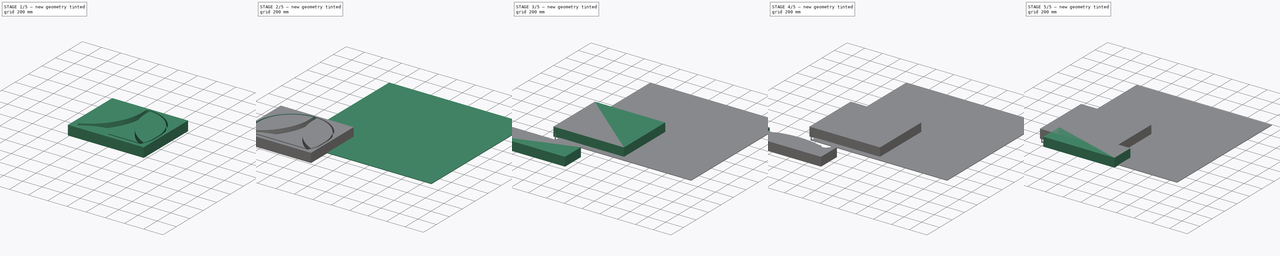
[diagram: build sequence overview — one tinted view per stage of 5, left to right]
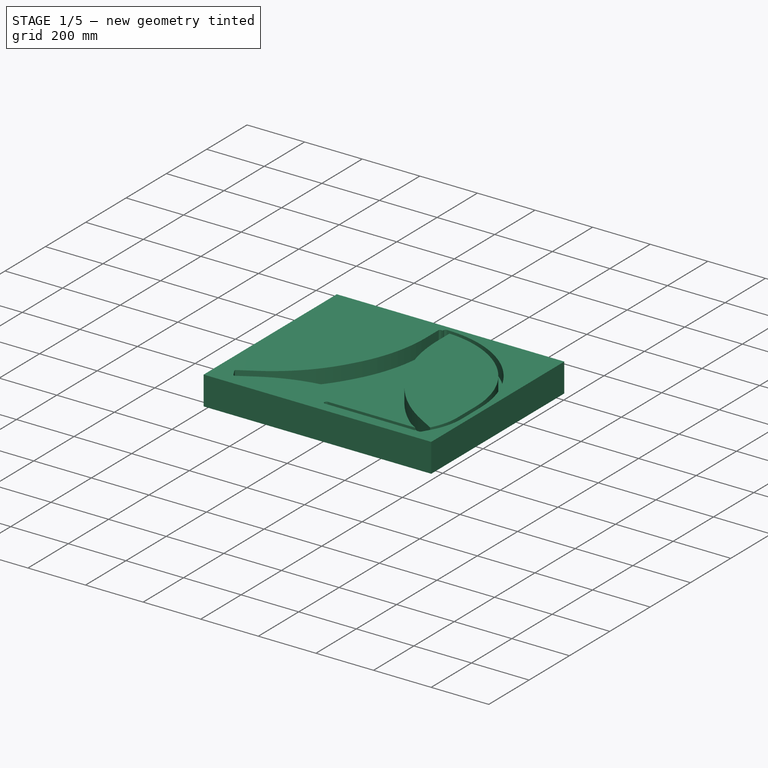
[diagram: stage 1 of 5 — iso view after this stage's code; geometry added in this stage tinted green]
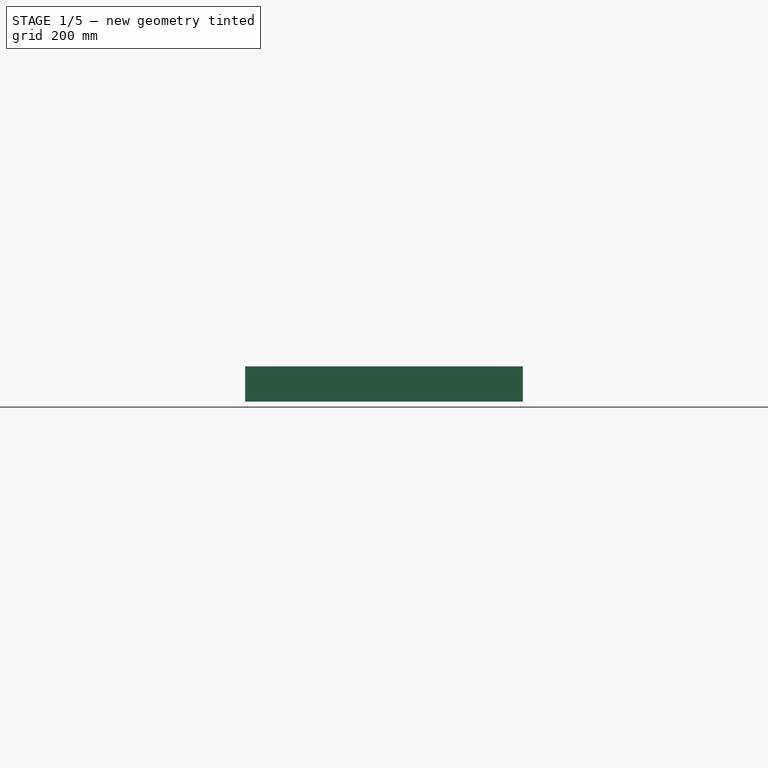
[diagram: stage 1 of 5 — front view after this stage's code; geometry added in this stage tinted green]
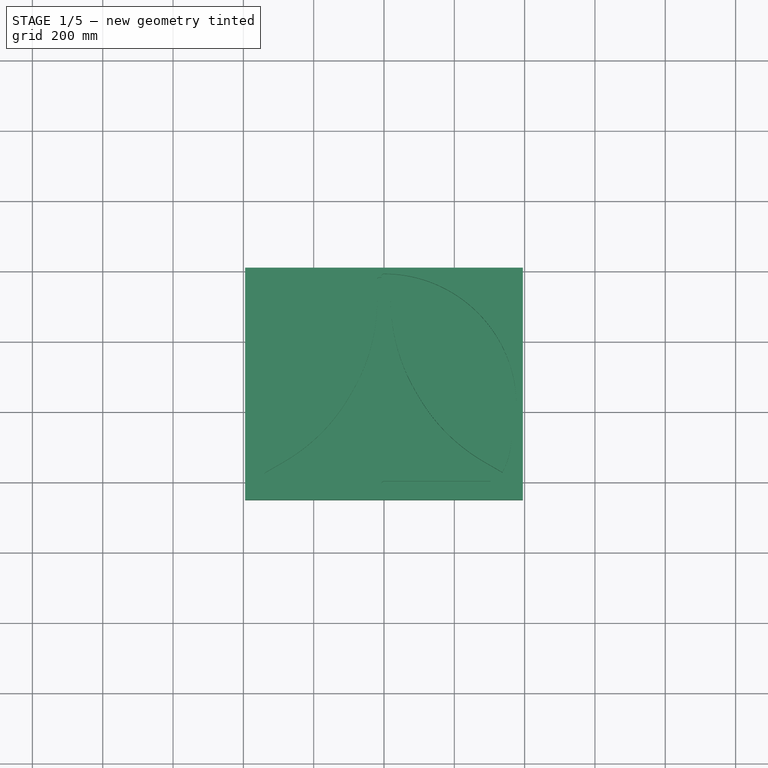
[diagram: stage 1 of 5 — top view after this stage's code; geometry added in this stage tinted green]
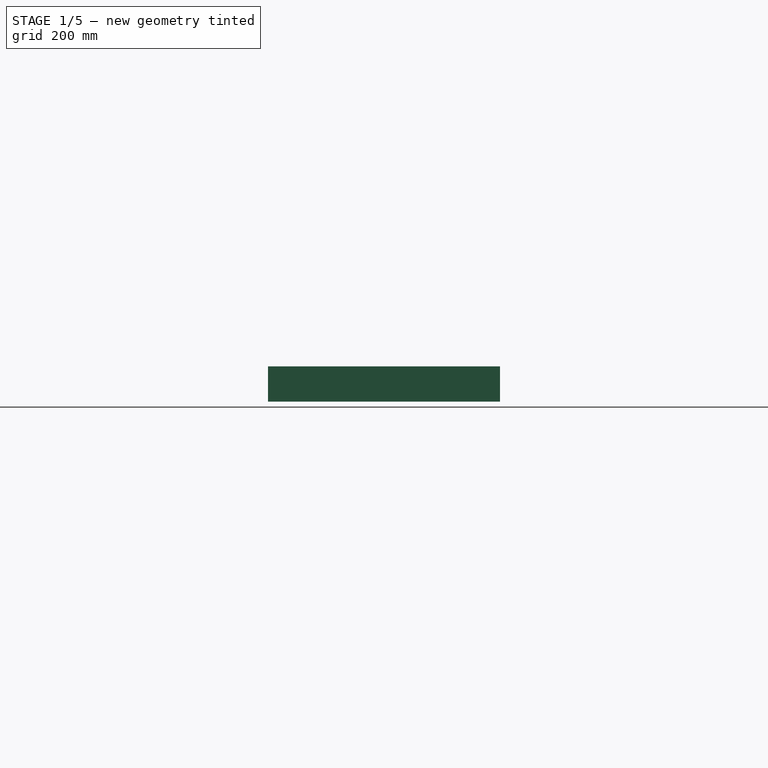
[diagram: stage 1 of 5 — right view after this stage's code; geometry added in this stage tinted green]
FCSTD DOCUMENT  (FreeCAD 0.22R34291 (Git))
Label: composit_full_size2part_transport
License: All rights reserved
LicenseURL: http://en.wikipedia.org/wiki/All_rights_reserved
objects: Part::FeaturePython×12, Path::FeaturePython×11, App::DocumentObjectGroup×9, PartDesign::SubShapeBinder×8, Sketcher::SketchObject×5, PartDesign::Pocket×4, App::FeaturePython×3, PartDesign::Pad×2, PartDesign::Body×2, PartDesign::PolarPattern×1, PartDesign::Mirrored×1, Part::Part2DObjectPython×1
note: 47 computed .brp shape members not serialized (recipe doc carries the construction recipe); baked Part::Feature solids carry a one-line shape summary decoded from their .brp
EXTERNAL_REF file=composit_full_size2part.FCStd obj=Populate006
EXTERNAL_REF file=composit_full_size2part.FCStd obj=Body051
EXTERNAL_REF file=composit_full_size2part.FCStd obj=Body042
EXTERNAL_REF file=composit_full_size2part.FCStd obj=Compound020

FEATURE [PartDesign::Body] Body  label="bottom"
  Group = -> [Binder,Sketch,Pad,Pocket,Sketch001,Pocket001,PolarPattern,Binder003]
  Origin = -> Origin
  Tip = -> PolarPattern
FEATURE [PartDesign::SubShapeBinder] Binder004
  BindCopyOnChange = 0
  BindMode = 0
  ClaimChildren = false
  Context = -> Body001 [Binder004.]
  Fuse = false
  MakeFace = true
  Offset = 5
  OffsetFill = false
  OffsetIntersection = false
  OffsetJoinType = 0
  OffsetOpenResult = false
  PartialLoad = false
  Placement = pos=(0,0,100) rot=(0,0,1;0rad)
  Relative = true
  Support = -> [Binder001]
  _Version = 2
FEATURE [PartDesign::SubShapeBinder] Binder005
  BindCopyOnChange = 0
  BindMode = 0
  ClaimChildren = false
  Context = -> Body001 [Binder005.]
  Fuse = false
  MakeFace = true
  OffsetFill = false
  OffsetIntersection = false
  OffsetJoinType = 0
  OffsetOpenResult = false
  PartialLoad = false
  Placement = pos=(0,0,100) rot=(0,0,1;0rad)
  Relative = true
  Support = -> [<external composit_full_size2part.FCStd>#Compound020]
  _Version = 2
  expr: Support = <<composit_full_size2part>>#<<plexiglass_shield_2d>>._self
FEATURE [Sketcher::SketchObject] Sketch003
  AttachmentOffset = pos=(0,0,100) rot=(0,0,1;0rad)
  ExternalGeometry = -> [Binder005]
  FullyConstrained = true
  MapMode = 5
  Placement = pos=(0,0,100) rot=(0,0,1;0rad)
  Support = -> [XY_Plane001]
  sketch-geometry (6):
    g0: ArcOfCircle CenterX=153.653 CenterY=-71.9686 CenterZ=0 NormalX=0 NormalY=0 NormalZ=1 AngleXU=0 Radius=215.948 StartAngle=5.75959 EndAngle=6.28319
    g1: ArcOfCircle CenterX=1.35601e-11 CenterY=15.6832 CenterZ=0 NormalX=0 NormalY=0 NormalZ=1 AngleXU=0 Radius=369.601 StartAngle=0 EndAngle=1.5708
    g2: LineSegment StartX=369.601 StartY=-71.9686 StartZ=0 EndX=369.601 EndY=15.6832 EndZ=0
    g3: LineSegment StartX=379.601 StartY=-34.6481 StartZ=0 EndX=379.601 EndY=0 EndZ=0
    g4: LineSegment StartX=340.67 StartY=-179.943 StartZ=0 EndX=326.27 EndY=-204.884 EndZ=0
    g5: LineSegment StartX=326.27 StartY=-204.884 StartZ=0 EndX=0 EndY=-204.884 EndZ=0
  constraints (17):
    c: Coincident(g0,g-5)
    c: Horizontal(g1,g1)
    c: Coincident(g2,g1)
    c: Vertical(g2)
    c: Tangent(g2,g0) = -1.5708
    c: Vertical(g3)
    c: Tangent(g3,g-5) = -1.5708
    c: PointOnObject(g3,g-1)
    c: Distance(g3,g2) = 10
    c: Perpendicular(g1,g-2) = 4.71239
    c: PointOnObject(g-8,g1)
    c: Tangent(g0,g-4)
    c: Coincident(g4,g0)
    c: Coincident(g4,g-3)
    c: Coincident(g5,g4)
    c: PointOnObject(g5,g-2)
    c: Horizontal(g5)
FEATURE [Sketcher::SketchObject] Sketch002
  ExternalGeometry = -> [Sketch003]
  FullyConstrained = true
  MapMode = 5
  Support = -> [XY_Plane001]
  sketch-geometry (5):
    g0: LineSegment StartX=-395 StartY=410 StartZ=0 EndX=-395 EndY=-250 EndZ=0
    g1: LineSegment StartX=-395 StartY=-250 StartZ=0 EndX=395 EndY=-250 EndZ=0
    g2: LineSegment StartX=395 StartY=-250 StartZ=0 EndX=395 EndY=410 EndZ=0
    g3: LineSegment StartX=395 StartY=410 StartZ=0 EndX=-395 EndY=410 EndZ=0
    g4: GeomPoint X=0 Y=80 Z=0
  constraints (13):
    c: Coincident(g0,g1)
    c: Coincident(g1,g2)
    c: Coincident(g2,g3)
    c: Coincident(g3,g0)
    c: Horizontal(g1)
    c: Horizontal(g3)
    c: Vertical(g0)
    c: Vertical(g2)
    c: Symmetric(g1,g0,g4)
    c: PointOnObject(g4,g-2)
    c: DistanceX(g3,g3) = 790
    c: DistanceY(g2,g2) = 660
    c: DistanceY(g4) = 80
FEATURE [PartDesign::SubShapeBinder] Binder006
  BindCopyOnChange = 0
  BindMode = 0
  ClaimChildren = false
  Context = -> Body001 [Binder006.]
  Fuse = false
  MakeFace = true
  Offset = 7.5
  OffsetFill = false
  OffsetIntersection = false
  OffsetJoinType = 0
  OffsetOpenResult = false
  PartialLoad = false
  Relative = true
  Support = -> [Sketch003]
  _Version = 2
FEATURE [PartDesign::Pad] Pad001
  Direction = (0,0,1)
  Length = 100
  Length2 = 10
  Profile = -> Sketch002
  ReferenceAxis = -> Sketch002 [N_Axis]
  Type = 0
FEATURE [PartDesign::Pocket] Pocket002
  BaseFeature = -> Pad001
  Direction = (0,0,-1)
  Length = 50
  Length2 = 5
  Profile = -> Binder004
  Type = 0
  expr: Profile = Binder004._self
FEATURE [PartDesign::Pocket] Pocket003
  BaseFeature = -> Pocket002
  Direction = (0,0,-1)
  Length = 50
  Length2 = 5
  Profile = -> Binder006
  Type = 0
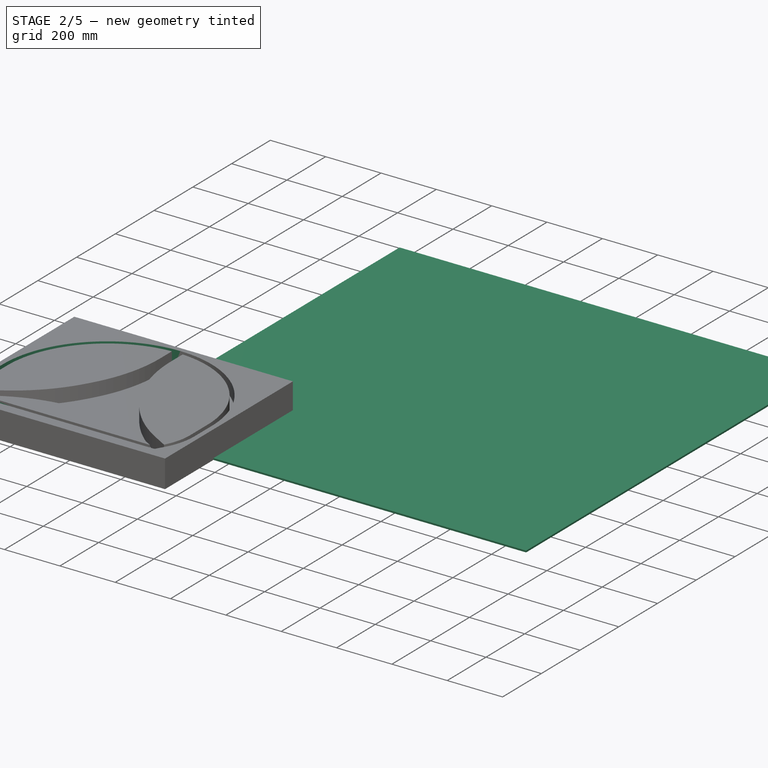
[diagram: stage 2 of 5 — iso view after this stage's code; geometry added in this stage tinted green]
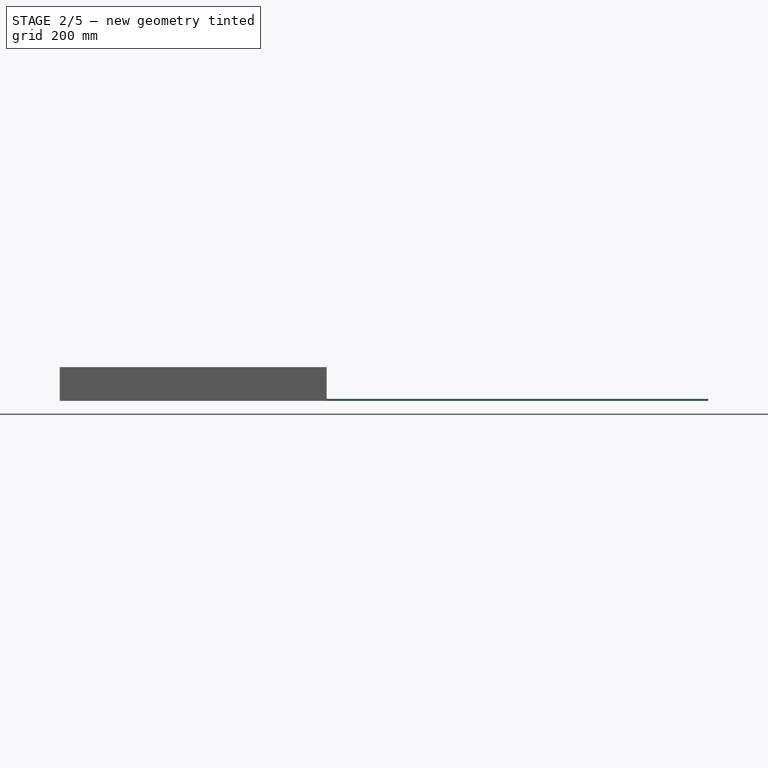
[diagram: stage 2 of 5 — front view after this stage's code; geometry added in this stage tinted green]
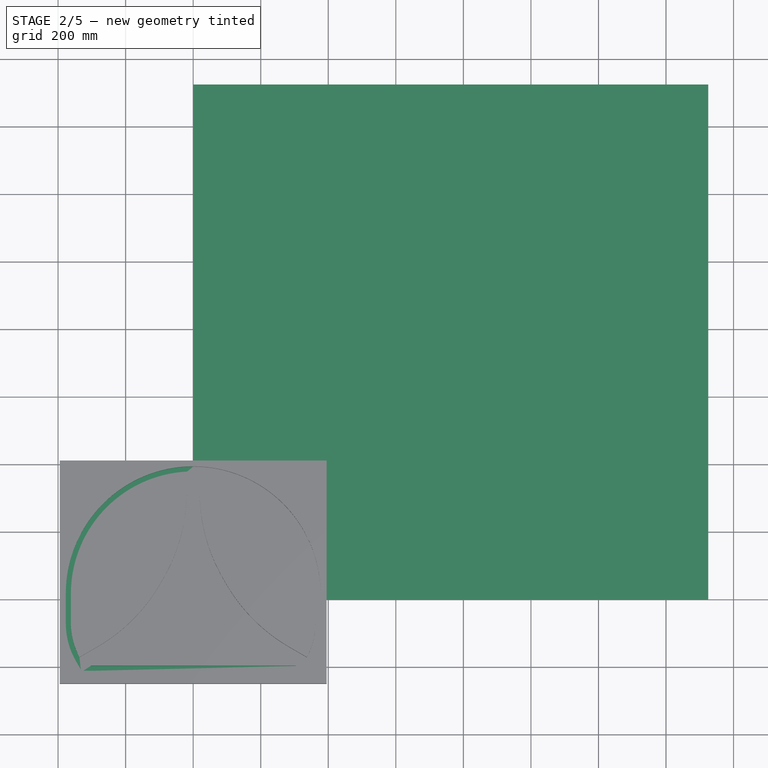
[diagram: stage 2 of 5 — top view after this stage's code; geometry added in this stage tinted green]
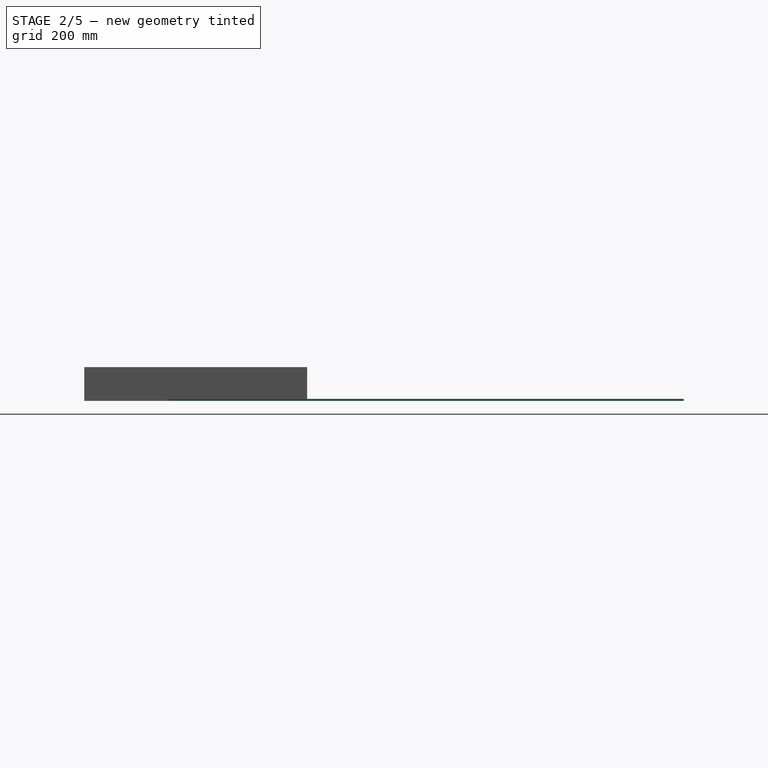
[diagram: stage 2 of 5 — right view after this stage's code; geometry added in this stage tinted green]
FEATURE [PartDesign::Mirrored] Mirrored
  BaseFeature = -> Pocket003
  MirrorPlane = -> YZ_Plane001
  Originals = -> [Pocket003]
  Refine = true
FEATURE [Path::FeaturePython] _0mm_Endmill002  label="10mm Endmill003"  # Path/CAM operation (typed FeaturePython)
  HorizFeed = 51.6667
  HorizRapid = 0
  SpindleDir = 0
  SpindleSpeed = 18000
  Tool = -> ToolBit002
  ToolNumber = 2
  VertFeed = 16.6667
  VertRapid = 0
  expr: HorizRapid = SetupSheet001.HorizRapid
  expr: VertRapid = SetupSheet001.VertRapid
FEATURE [App::DocumentObjectGroup] Tools001
  Group = -> [_0mm_Endmill002]
FEATURE [Path::FeaturePython] Profile002  # Path/CAM operation (typed FeaturePython)
  Active = true
  AreaParams:
    Tolerance = 1e-07
    FitArcs = True
    Simplify = False
    CleanDistance = 0.0
    Accuracy = 0.01
    Unit = 1.0
    MinArcPoints = 4
    MaxArcPoints = 100
    ClipperScale = 10000000.0
    Fill = 0
    Coplanar = 0
    Reorient = True
    Outline = False
    Explode = False
    OpenMode = 0
    Deflection = 0.01
    SubjectFill = 0
    ClipFill = 0
    Offset = 7.5
    ExtraPass = 0
    Stepover = 0.0
    LastStepover = 0.0
    JoinType = 0
    EndType = 0
    MiterLimit = 2.0
    RoundPrecision = 0.0
    PocketMode = 0
    ToolRadius = 1.0
    PocketExtraOffset = 0.0
    PocketStepover = 0.0
    PocketLastStepover = 0.0
    FromCenter = False
    Angle = 45.0
    AngleShift = 0.0
    Shift = 0.0
    Thicken = False
    SectionCount = -1
    Stepdown = 1.0
    SectionOffset = 0.0
    SectionTolerance = 1e-07
    SectionMode = 2
    Project = False
  ClearanceHeight = 106
  CoolantMode = 0
  CycleTime = 00:02:44
  Direction = 1
  FinalDepth = 0
  HandleMultipleFeatures = 0
  JoinType = 0
  MiterLimit = 0.1
  OffsetExtra = 0
  OpFinalDepth = 0
  OpStartDepth = 101
  OpStockZMax = 101
  OpStockZMin = 0
  OpToolDiameter = 15
  PathParams:
    orientation = 0
    feedrate = 51.666666666666664
    feedrate_v = 16.666666666666668
    verbose = True
    resume_height = 104.00000000000001
    retraction = 106.00000000000001
    return_end = True
    preamble = False
  SafeHeight = 104
  Side = 0
  SplitArcs = false
  StartDepth = 101
  StartPoint = (0,0,0)
  StepDown = 52
  ToolController = -> _0mm_Endmill002
  UseComp = true
  UseStartPoint = false
  processCircles = true
  processHoles = true
  processPerimeter = true
  expr: ClearanceHeight = OpStockZMax + SetupSheet001.ClearanceHeightOffset
  expr: FinalDepth = OpFinalDepth
  expr: SafeHeight = OpStockZMax + SetupSheet001.SafeHeightOffset
  expr: StartDepth = OpStartDepth
  expr: StepDown = 52 mm
FEATURE [App::DocumentObjectGroup] Operations001
  Group = -> [Profile002]
FEATURE [Path::FeaturePython] Job001  # Path/CAM operation (typed FeaturePython)
  CycleTime = 00:02:44
  Fixtures = G54
  GeometryTolerance = 0.01
  JobType = 0
  LastPostProcessDate = 2023-04-07 21:15:41.169243
  LastPostProcessOutput = <userpath>/56D3-E9D0/2.tap
  Model = -> Model001
  Operations = -> Operations001
  OrderOutputBy = 0
  PostProcessor = 1
  PostProcessorOutputFile = %d.%j.tap
  SetupSheet = -> SetupSheet001
  SplitOutput = false
  Stock = -> Stock
  Tools = -> Tools001
FEATURE [PartDesign::SubShapeBinder] Binder007  label="plywood"
  BindCopyOnChange = 0
  BindMode = 0
  ClaimChildren = false
  Fuse = false
  MakeFace = true
  OffsetFill = false
  OffsetIntersection = false
  OffsetJoinType = 0
  OffsetOpenResult = false
  PartialLoad = false
  Relative = true
  Support = -> [Body001[Pad001.Sketch002.]]
  _Version = 2
FEATURE [App::FeaturePython] SetupSheet002  # Path/CAM operation (typed FeaturePython)
  ClearanceHeightExpression = OpStockZMax+SetupSheet002.ClearanceHeightOffset
  ClearanceHeightOffset = 5
  CoolantMode = 0
  CoolantModes = None | Flood | Mist
  FinalDepthExpression = OpFinalDepth
  HorizRapid = 0
  ProfileDirection = 1
  ProfileprocessCircles = true
  ProfileprocessHoles = true
  ProfileprocessPerimeter = true
  SafeHeightExpression = OpStockZMax+SetupSheet002.SafeHeightOffset
  SafeHeightOffset = 3
  StartDepthExpression = OpStartDepth
  StepDownExpression = OpToolDiameter
  VertRapid = 0
FEATURE [Part::FeaturePython] Clone002  label="Model-plywood"  # Draft clone (typed FeaturePython)
  AttacherType = Attacher::AttachEngine3D
  Fuse = false
  Objects = -> [Binder007]
  PathResource = Model
  Placement = pos=(398,255,0) rot=(0,0,1;0rad)
  Scale = (1,1,1)
FEATURE [Part::FeaturePython] ToolBit  label="3.175mm Endmill"  # Path/CAM toolbit (typed FeaturePython)
  BitPropertyNames = Chipload | CuttingEdgeHeight | Diameter | Flutes | Length | Material | ShankDiameter | SpindleDirection
  BitShape = <path>
  Chipload = 0
  CuttingEdgeHeight = 30
  Diameter = 3.17
  Flutes = 0
  Length = 10
  Material = 0
  ShankDiameter = 3
  ShapeName = endmill
  SpindleDirection = 0
FEATURE [Path::FeaturePython] __175mm_Endmill  label="3.175mm Endmill001"  # Path/CAM operation (typed FeaturePython)
  HorizFeed = 51.6667
  HorizRapid = 0
  SpindleDir = 0
  SpindleSpeed = 18000
  Tool = -> ToolBit
  ToolNumber = 1
  VertFeed = 16.6667
  VertRapid = 0
  expr: HorizRapid = SetupSheet002.HorizRapid
  expr: VertRapid = SetupSheet002.VertRapid
FEATURE [App::DocumentObjectGroup] Tools002
  Group = -> [__175mm_Endmill]
FEATURE [Part::FeaturePython] Stock003  # WARN: FeaturePython — macro-defined, semantics opaque (R4)
  Height = 6
  Length = 1525
  StockType = CreateBox
  Width = 1525
FEATURE [Part::FeaturePython] Clone003  label="Model-plywood001"  # Draft clone (typed FeaturePython)
  AttacherType = Attacher::AttachEngine3D
  Fuse = false
  Objects = -> [Binder007]
  PathResource = Model
  Placement = pos=(1270,398,0) rot=(0,0,1;1.5708rad)
  Scale = (1,1,1)
FEATURE [Part::FeaturePython] Clone004  label="Model-plywood002"  # Draft clone (typed FeaturePython)
  AttacherType = Attacher::AttachEngine3D
  Fuse = false
  Objects = -> [Binder007]
  PathResource = Model
  Placement = pos=(1127,1110,0) rot=(0,0,1;0rad)
  Scale = (1,1,1)
FEATURE [Part::FeaturePython] Clone005  label="Model-plywood003"  # Draft clone (typed FeaturePython)
  AttacherType = Attacher::AttachEngine3D
  Fuse = false
  Objects = -> [Binder007]
  PathResource = Model
  Placement = pos=(415,1127,0) rot=(0,0,1;1.5708rad)
  Scale = (1,1,1)
FEATURE [Sketcher::SketchObject] Sketch004
  ExternalGeometry = -> [Clone002,Clone003,Clone005,Clone004]
  FullyConstrained = true
  sketch-geometry (12):
    g0: LineSegment StartX=698.5 StartY=1525 StartZ=0 EndX=698.5 EndY=698.5 EndZ=0
    g1: LineSegment StartX=0 StartY=698.5 StartZ=0 EndX=826.5 EndY=698.5 EndZ=0
    g2: LineSegment StartX=1525 StartY=826.5 StartZ=0 EndX=698.5 EndY=826.5 EndZ=0
    g3: LineSegment StartX=826.5 StartY=0 StartZ=0 EndX=826.5 EndY=826.5 EndZ=0
    g4: LineSegment StartX=665 StartY=732 StartZ=0 EndX=729 EndY=698.5 EndZ=0
    g5: LineSegment StartX=729 StartY=698.5 StartZ=0 EndX=793 EndY=665 EndZ=0
    g6: LineSegment StartX=793 StartY=665 StartZ=0 EndX=826.5 EndY=729 EndZ=0
    g7: LineSegment StartX=826.5 StartY=729 StartZ=0 EndX=860 EndY=793 EndZ=0
    g8: LineSegment StartX=860 StartY=793 StartZ=0 EndX=796 EndY=826.5 EndZ=0
    g9: LineSegment StartX=796 StartY=826.5 StartZ=0 EndX=732 EndY=860 EndZ=0
    g10: LineSegment StartX=732 StartY=860 StartZ=0 EndX=698.5 EndY=796 EndZ=0
    g11: LineSegment StartX=698.5 StartY=796 StartZ=0 EndX=665 EndY=732 EndZ=0
  constraints (36):
    c: Vertical(g0)
    c: PointOnObject(g1,g-2)
    c: Horizontal(g1)
    c: PointOnObject(g2,g0)
    c: Horizontal(g2)
    c: PointOnObject(g3,g-1)
    c: PointOnObject(g3,g2)
    c: Vertical(g3)
    c: PointOnObject(g1,g3)
    c: PointOnObject(g0,g1)
    c: Coincident(g4,g-5)
    c: PointOnObject(g4,g1)
    c: Coincident(g4,g5)
    c: Coincident(g5,g-3)
    c: Coincident(g5,g6)
    c: PointOnObject(g6,g3)
    c: Coincident(g6,g7)
    c: Coincident(g7,g-4)
    c: Coincident(g7,g8)
    c: PointOnObject(g8,g2)
    c: Coincident(g8,g9)
    c: Coincident(g9,g-6)
    c: Coincident(g9,g10)
    c: PointOnObject(g10,g0)
    c: Coincident(g10,g11)
    c: Coincident(g11,g4)
    c: Equal(g11,g4)
    c: Equal(g4,g5)
    c: Equal(g5,g6)
    c: Equal(g6,g7)
    c: Equal(g7,g8)
    c: Equal(g8,g9)
    c: Equal(g9,g10)
    c: Parallel(g4,g5)
    c: Equal(g1,g0)
    c: Equal(g0,g2)
FEATURE [Path::FeaturePython] Engrave  # Path/CAM operation (typed FeaturePython)
  Active = true
  ClearanceHeight = 20
  CoolantMode = 0
  CycleTime = 00:02:30
  FinalDepth = 0
  OpFinalDepth = -20
  OpStartDepth = 0
  OpStockZMax = 6
  OpStockZMin = 0
  OpToolDiameter = 3.17
  SafeHeight = 9
  StartDepth = 6
  StartVertex = 0
  StepDown = 20
  ToolController = -> __175mm_Endmill
  expr: ClearanceHeight = 20
  expr: SafeHeight = OpStockZMax + SetupSheet002.SafeHeightOffset
  expr: StepDown = 20
FEATURE [App::DocumentObjectGroup] Operations002
  Group = -> [Engrave]
FEATURE [Part::Part2DObjectPython] Clone2D  label="Model-Sketch004"  # Draft 2D object (typed FeaturePython)
  Fuse = false
  Objects = -> [Sketch004]
  PathResource = Model
  Scale = (1,1,1)
FEATURE [App::DocumentObjectGroup] Model002
  Group = -> [Clone2D]
FEATURE [Path::FeaturePython] Job002  # Path/CAM operation (typed FeaturePython)
  CycleTime = 00:02:30
  Fixtures = G54
  GeometryTolerance = 0.01
  JobType = 0
  LastPostProcessDate = 2023-09-19 09:15:59.591127
  LastPostProcessOutput = <userpath>/Documents/CNC/транспорт_доски.tap
  Model = -> Model002
  Operations = -> Operations002
  OrderOutputBy = 0
  PostProcessor = 1
  PostProcessorOutputFile = %d.%j.tap
  SetupSheet = -> SetupSheet002
  SplitOutput = false
  Stock = -> Stock003
  Tools = -> Tools002
note: 3 file-system paths scrubbed to <path> (originals preserved in the JSON sidecar)
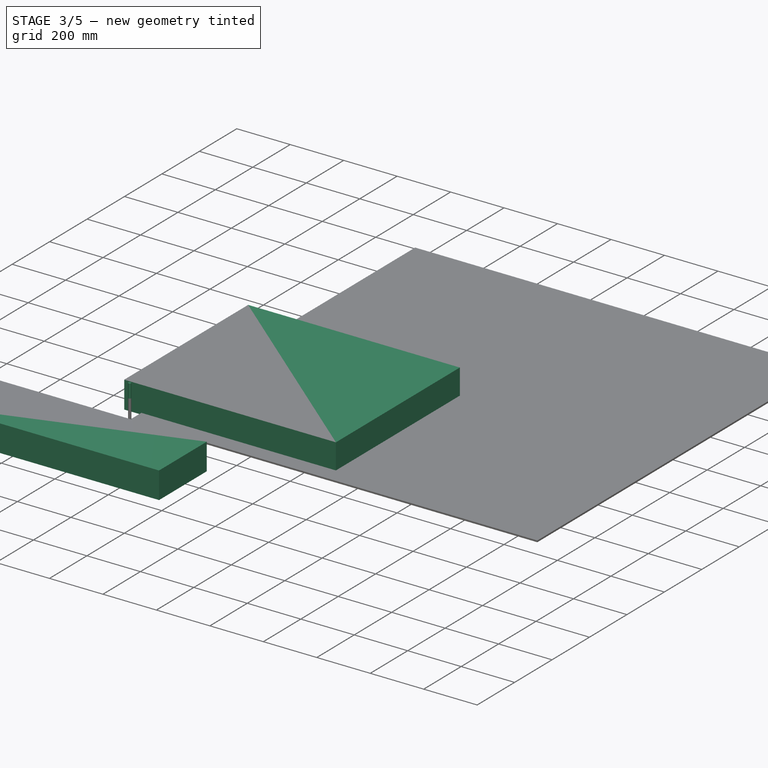
[diagram: stage 3 of 5 — iso view after this stage's code; geometry added in this stage tinted green]
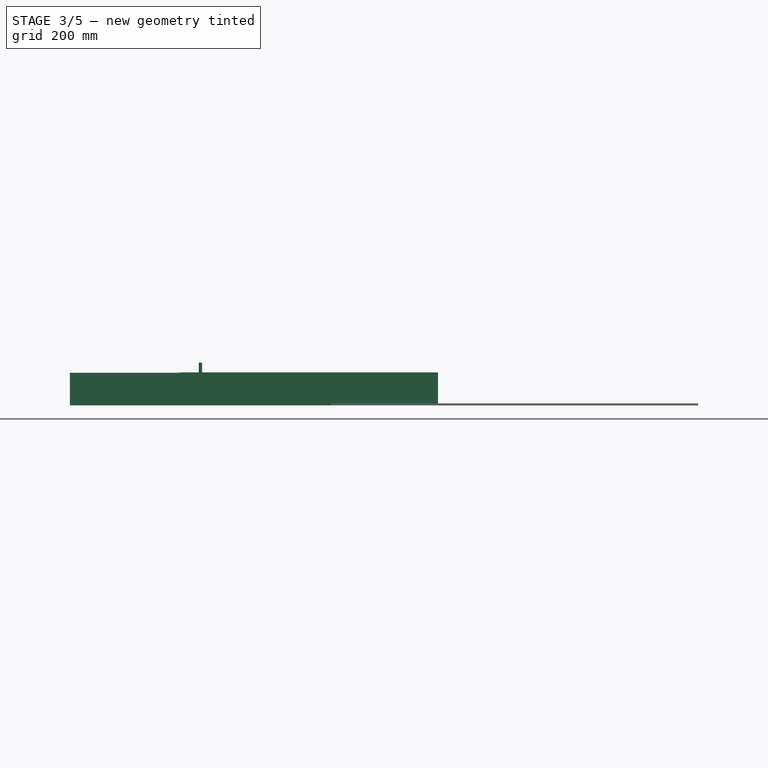
[diagram: stage 3 of 5 — front view after this stage's code; geometry added in this stage tinted green]
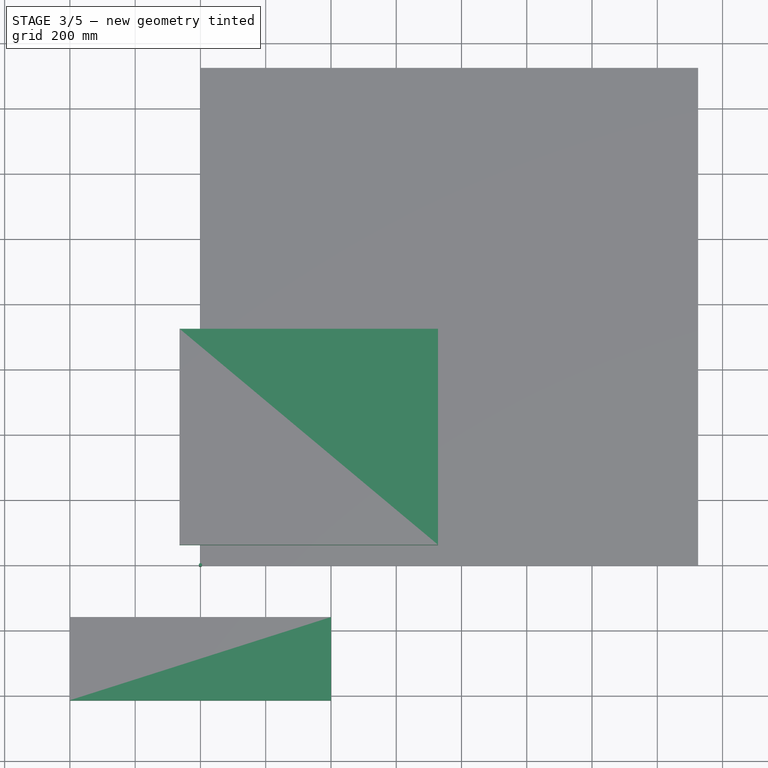
[diagram: stage 3 of 5 — top view after this stage's code; geometry added in this stage tinted green]
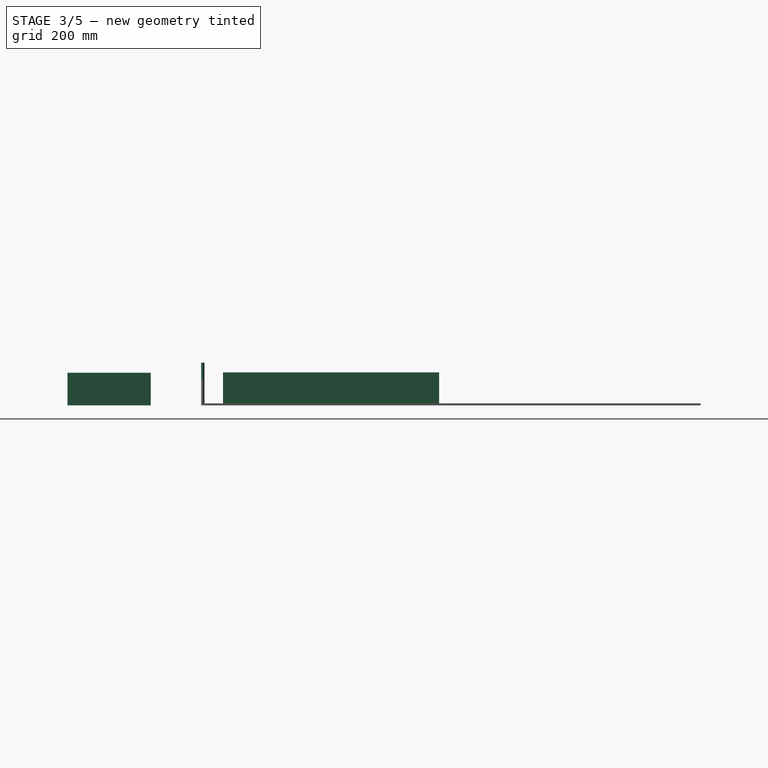
[diagram: stage 3 of 5 — right view after this stage's code; geometry added in this stage tinted green]
FEATURE [PartDesign::SubShapeBinder] Binder
  BindCopyOnChange = 0
  BindMode = 0
  ClaimChildren = false
  Context = -> Body [Binder.]
  Fuse = false
  MakeFace = true
  Offset = 10
  OffsetFill = false
  OffsetIntersection = false
  OffsetJoinType = 0
  OffsetOpenResult = false
  PartialLoad = false
  Placement = pos=(0,0,100) rot=(0,0,1;0rad)
  Relative = true
  Support = -> [<external composit_full_size2part.FCStd>#Populate006]
  _Version = 2
  expr: Support = <<composit_full_size2part>>#<<basement2_sketch>>._self
FEATURE [Sketcher::SketchObject] Sketch
  ExternalGeometry = -> [Binder]
  FullyConstrained = true
  MapMode = 5
  Support = -> [XY_Plane]
  sketch-geometry (15):
    g0: Circle CenterX=2.772e-13 CenterY=6.49e-14 CenterZ=0 NormalX=0 NormalY=0 NormalZ=1 AngleXU=0 Radius=394.5
    g1: Circle CenterX=-2.772e-13 CenterY=6.49e-14 CenterZ=0 NormalX=0 NormalY=0 NormalZ=1 AngleXU=0 Radius=394.5
    g2: LineSegment StartX=2.772e-13 StartY=6.49e-14 StartZ=0 EndX=-2.772e-13 EndY=6.49e-14 EndZ=0
    g3: LineSegment StartX=-2.772e-13 StartY=6.49e-14 StartZ=0 EndX=2.197e-13 EndY=-1.81e-13 EndZ=0
    g4: LineSegment StartX=2.197e-13 StartY=-1.81e-13 StartZ=0 EndX=2.772e-13 EndY=6.49e-14 EndZ=0
    g5: LineSegment StartX=2.772e-13 StartY=6.49e-14 StartZ=0 EndX=0 EndY=0 EndZ=0
    g6: LineSegment StartX=0 StartY=0 StartZ=0 EndX=-2.772e-13 EndY=6.49e-14 EndZ=0
    g7: LineSegment StartX=0 StartY=0 StartZ=0 EndX=2.197e-13 EndY=-1.81e-13 EndZ=0
    g8: LineSegment StartX=400 StartY=-414.5 StartZ=0 EndX=400 EndY=-159.603 EndZ=0
    g9: LineSegment StartX=400 StartY=-159.603 StartZ=0 EndX=-400 EndY=-159.603 EndZ=0
    g10: LineSegment StartX=-400 StartY=-159.603 StartZ=0 EndX=-400 EndY=-414.5 EndZ=0
    g11: LineSegment StartX=-400 StartY=-414.5 StartZ=0 EndX=400 EndY=-414.5 EndZ=0
    g12: GeomPoint X=0 Y=-287.052 Z=0
    g13: LineSegment StartX=-351.245 StartY=-179.603 StartZ=0 EndX=-351.245 EndY=-159.603 EndZ=0
    g14: LineSegment StartX=-2.772e-13 StartY=-394.5 StartZ=0 EndX=-2.772e-13 EndY=-414.5 EndZ=0
  constraints (38):
    c: Coincident(g2,g0)
    c: Coincident(g2,g1)
    c: Horizontal(g2)
    c: Coincident(g2,g3)
    c: Coincident(g3,g-3)
    c: Coincident(g3,g4)
    c: Coincident(g4,g2)
    c: Coincident(g5,g0)
    c: Coincident(g5,g-1)
    c: Coincident(g5,g6)
    c: Coincident(g6,g1)
    c: Coincident(g5,g7)
    c: Coincident(g7,g3)
    c: Equal(g6,g5)
    c: Equal(g5,g7)
    c: Equal(g2,g3)
    c: Equal(g1,g-3)
    c: Equal(g-3,g0)
    c: Coincident(g8,g9)
    c: Coincident(g9,g10)
    c: Coincident(g10,g11)
    c: Coincident(g11,g8)
    c: Horizontal(g9)
    c: Horizontal(g11)
    c: Vertical(g8)
    c: Vertical(g10)
    c: Symmetric(g9,g8,g12)
    c: PointOnObject(g12,g-2)
    c: Coincident(g13,g-3)
    c: PointOnObject(g13,g9)
    c: Vertical(g13)
    c: PointOnObject(g14,g1)
    c: PointOnObject(g14,g11)
    c: Vertical(g14)
    c: PointOnObject(g1,g14)
    c: Equal(g14,g13)
    c: DistanceX(g9) = -400
    c: DistanceY(g14,g14) = 20
FEATURE [PartDesign::Pad] Pad
  Direction = (0,0,1)
  Length = 100
  Length2 = 10
  Profile = -> Sketch
  ReferenceAxis = -> Sketch [N_Axis]
  Type = 0
FEATURE [Path::FeaturePython] Job  # Path/CAM operation (typed FeaturePython)
  CycleTime = 00:01:49
  Fixtures = G54
  GeometryTolerance = 0.01
  JobType = 0
  LastPostProcessDate = 2023-04-07 21:15:26.521219
  LastPostProcessOutput = <userpath>/56D3-E9D0/1.tap
  Model = -> Model
  Operations = -> Operations
  OrderOutputBy = 0
  PostProcessor = 1
  PostProcessorOutputFile = %d.%j.tap
  SetupSheet = -> SetupSheet
  SplitOutput = false
  Stock = -> Stock001
  Tools = -> Tools
FEATURE [App::FeaturePython] SetupSheet001  # Path/CAM operation (typed FeaturePython)
  ClearanceHeightExpression = OpStockZMax+SetupSheet001.ClearanceHeightOffset
  ClearanceHeightOffset = 5
  CoolantMode = 0
  CoolantModes = None | Flood | Mist
  FinalDepthExpression = OpFinalDepth
  HorizRapid = 0
  ProfileDirection = 1
  ProfileprocessCircles = true
  ProfileprocessHoles = true
  ProfileprocessPerimeter = true
  SafeHeightExpression = OpStockZMax+SetupSheet001.SafeHeightOffset
  SafeHeightOffset = 3
  StartDepthExpression = OpStartDepth
  StepDownExpression = OpToolDiameter
  VertRapid = 0
FEATURE [Part::FeaturePython] Clone001  label="Model-top"  # Draft clone (typed FeaturePython)
  AttacherType = Attacher::AttachEngine3D
  Fuse = false
  Objects = -> [Body001]
  PathResource = Model
  Placement = pos=(399.601,946,0) rot=(0,0,1;0rad)
  Scale = (1,1,1)
FEATURE [App::DocumentObjectGroup] Model001
  Group = -> [Clone001]
FEATURE [Part::FeaturePython] Stock  # WARN: FeaturePython — macro-defined, semantics opaque (R4)
  Base = -> Model001
  ExtXneg = 1
  ExtXpos = 1
  ExtYneg = 1
  ExtYpos = 1
  ExtZneg = 0
  ExtZpos = 1
  Placement = pos=(-63.017,63.017,0) rot=(0,0,1;0rad)
  StockType = FromBase
FEATURE [Part::FeaturePython] ToolBit002  label="10mm Endmill002"  # Path/CAM toolbit (typed FeaturePython)
  BitPropertyNames = Chipload | CuttingEdgeHeight | Diameter | Flutes | Length | Material | ShankDiameter | SpindleDirection
  BitShape = <path>
  Chipload = 0
  CuttingEdgeHeight = 80
  Diameter = 15
  File = <userpath>/.local/share/FreeCAD/Macro/Bit/10mm_Endmill.fctb
  Flutes = 0
  Length = 131
  Material = 0
  ShankDiameter = 10
  ShapeName = endmill
  SpindleDirection = 0
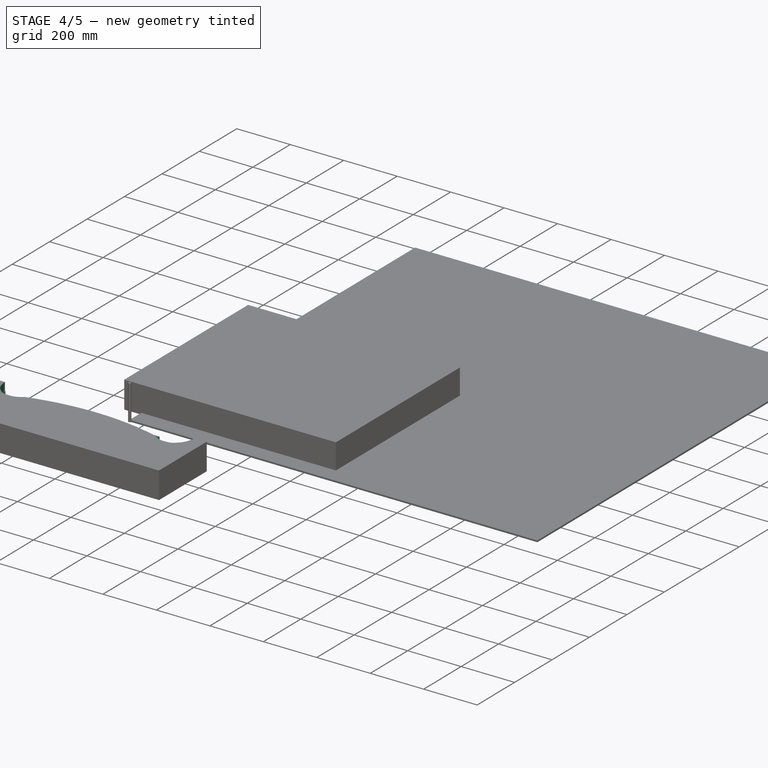
[diagram: stage 4 of 5 — iso view after this stage's code; geometry added in this stage tinted green]
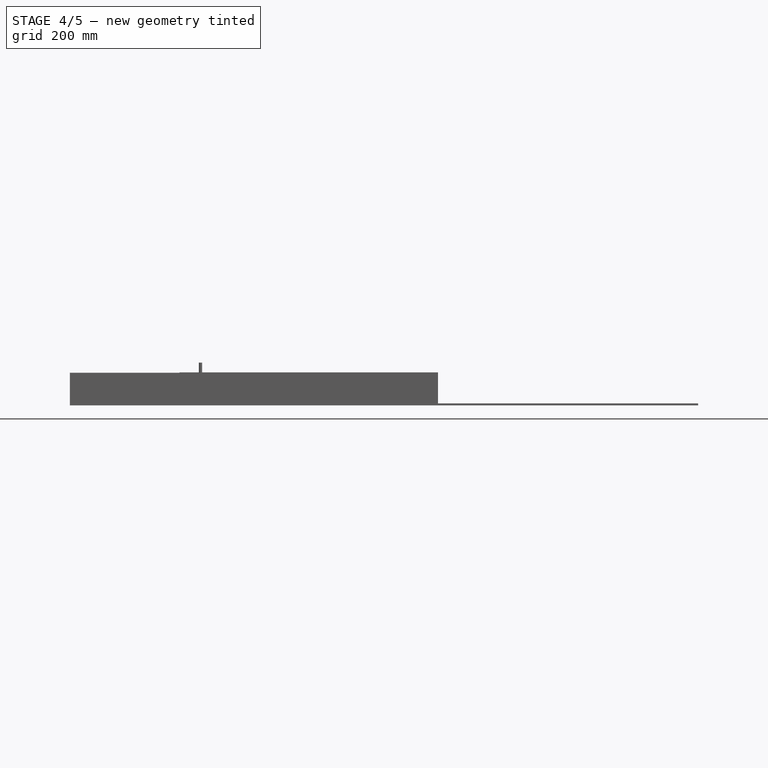
[diagram: stage 4 of 5 — front view after this stage's code; geometry added in this stage tinted green]
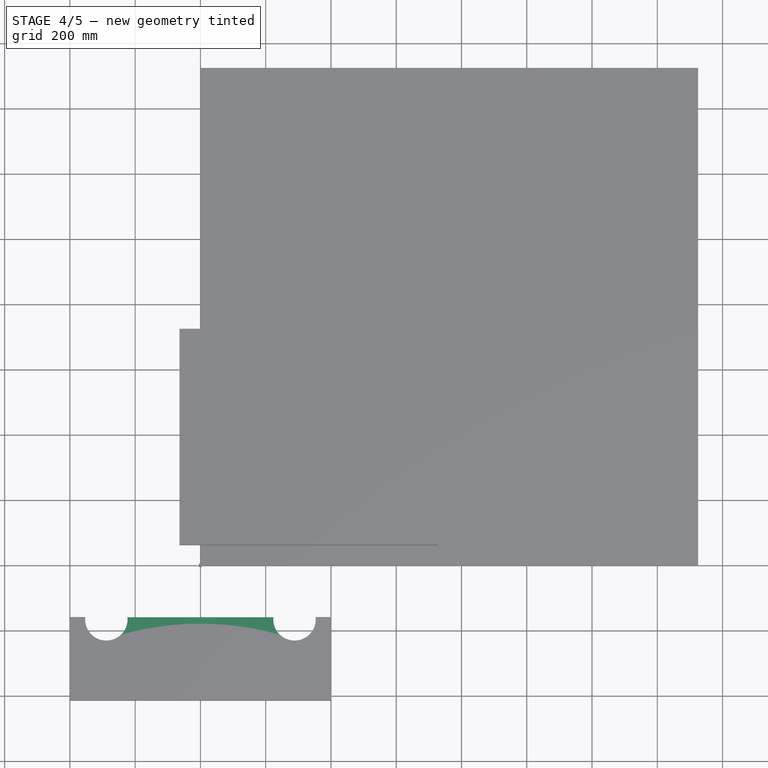
[diagram: stage 4 of 5 — top view after this stage's code; geometry added in this stage tinted green]
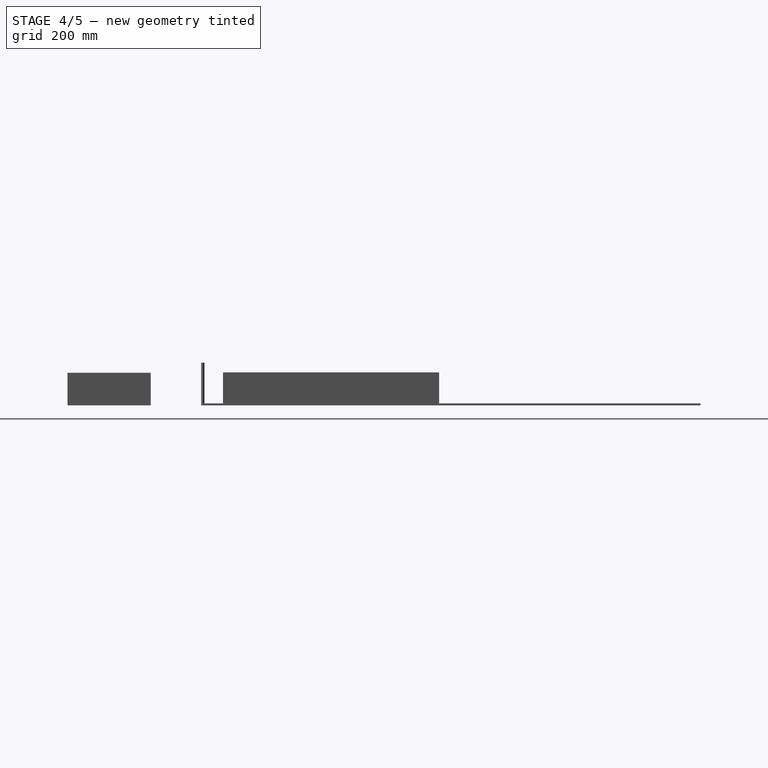
[diagram: stage 4 of 5 — right view after this stage's code; geometry added in this stage tinted green]
FEATURE [PartDesign::Pocket] Pocket
  BaseFeature = -> Pad
  Direction = (0,0,-1)
  Length = 30
  Length2 = 5
  Profile = -> Binder
  Type = 0
FEATURE [PartDesign::SubShapeBinder] Binder001
  BindCopyOnChange = 0
  BindMode = 0
  ClaimChildren = false
  Context = -> Body001 [Binder001.]
  Fuse = false
  MakeFace = true
  OffsetFill = false
  OffsetIntersection = false
  OffsetJoinType = 0
  OffsetOpenResult = false
  PartialLoad = false
  Relative = true
  Support = -> [<external composit_full_size2part.FCStd>#Body051[Binder186.]]
  _Version = 2
FEATURE [PartDesign::SubShapeBinder] Binder002
  BindCopyOnChange = 0
  BindMode = 0
  ClaimChildren = false
  Context = -> Body001 [Binder002.]
  Fuse = false
  MakeFace = true
  OffsetFill = false
  OffsetIntersection = false
  OffsetJoinType = 0
  OffsetOpenResult = false
  PartialLoad = false
  Placement = pos=(0,0,100) rot=(0,0,1;0rad)
  Relative = true
  Support = -> [Binder001]
  _Version = 2
FEATURE [PartDesign::SubShapeBinder] Binder003
  BindCopyOnChange = 0
  BindMode = 0
  ClaimChildren = false
  Context = -> Body [Binder003.]
  Fuse = false
  MakeFace = true
  OffsetFill = false
  OffsetIntersection = false
  OffsetJoinType = 0
  OffsetOpenResult = false
  PartialLoad = false
  Relative = true
  Support = -> [<external composit_full_size2part.FCStd>#Body042[Hole029.Binder146.]]
  _Version = 2
FEATURE [Sketcher::SketchObject] Sketch001
  ExternalGeometry = -> [Binder003]
  FullyConstrained = true
  MapMode = 5
  Support = -> [XY_Plane]
  sketch-geometry (1):
    g0: Circle CenterX=9.7e-15 CenterY=333 CenterZ=0 NormalX=0 NormalY=0 NormalZ=1 AngleXU=0 Radius=65
  constraints (2):
    c: Diameter(g0) = 130
    c: Symmetric(g-3,g-4,g0)
FEATURE [PartDesign::Pocket] Pocket001
  BaseFeature = -> Pocket
  Direction = (0,0,-1)
  Length = 5
  Length2 = 5
  Profile = -> Sketch001
  ReferenceAxis = -> Sketch001 [N_Axis]
  Reversed = true
  Type = 1
FEATURE [PartDesign::PolarPattern] PolarPattern
  Angle = 360
  Axis = -> Z_Axis
  BaseFeature = -> Pocket001
  Mode = 0
  Occurrences = 3
  Offset = 120
  Originals = -> [Pocket001]
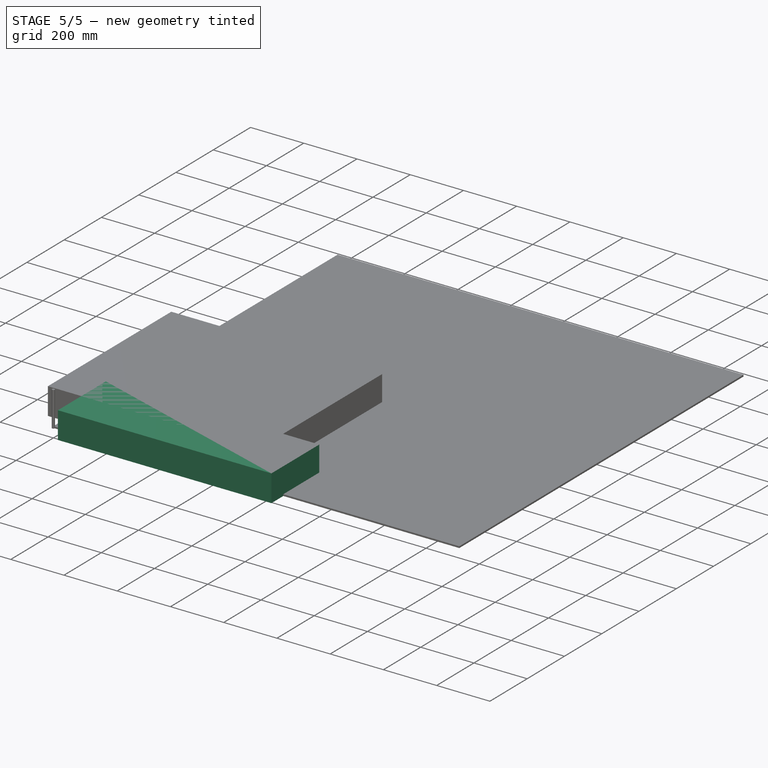
[diagram: stage 5 of 5 — iso view after this stage's code; geometry added in this stage tinted green]
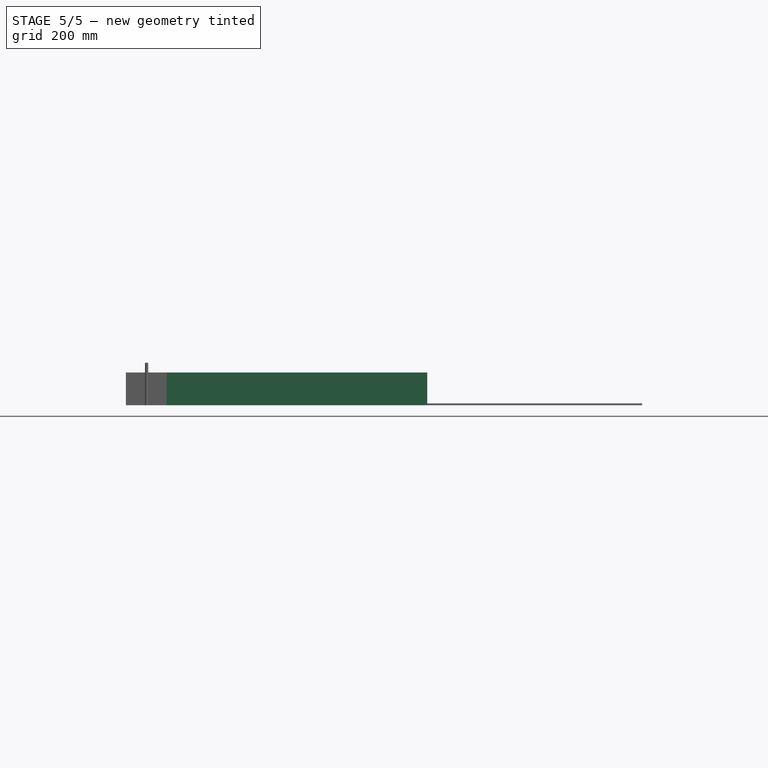
[diagram: stage 5 of 5 — front view after this stage's code; geometry added in this stage tinted green]
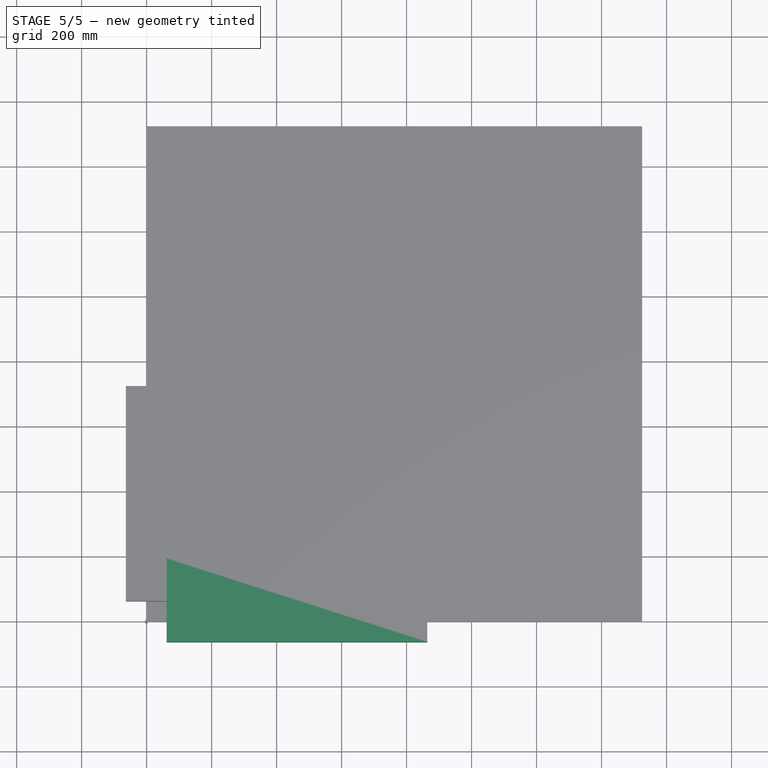
[diagram: stage 5 of 5 — top view after this stage's code; geometry added in this stage tinted green]
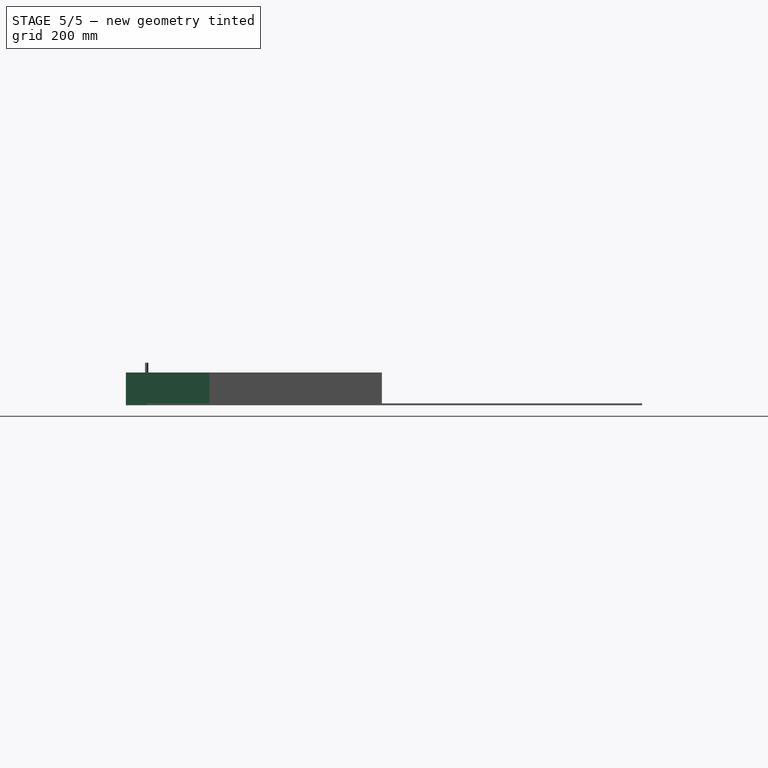
[diagram: stage 5 of 5 — right view after this stage's code; geometry added in this stage tinted green]
FEATURE [PartDesign::Body] Body001  label="top"
  Group = -> [Sketch002,Pad001,Binder001,Binder002,Pocket002,Binder004,Binder005,Sketch003,Binder006,Pocket003,Mirrored]
  Origin = -> Origin001
  Tip = -> Mirrored
FEATURE [App::FeaturePython] SetupSheet  # Path/CAM operation (typed FeaturePython)
  ClearanceHeightExpression = OpStockZMax+SetupSheet.ClearanceHeightOffset
  ClearanceHeightOffset = 5
  CoolantMode = 0
  CoolantModes = None | Flood | Mist
  FinalDepthExpression = OpFinalDepth
  HorizRapid = 0
  ProfileDirection = 1
  ProfileprocessCircles = true
  ProfileprocessHoles = true
  ProfileprocessPerimeter = true
  SafeHeightExpression = OpStockZMax+SetupSheet.SafeHeightOffset
  SafeHeightOffset = 3
  StartDepthExpression = OpStartDepth
  StepDownExpression = OpToolDiameter
  VertRapid = 0
FEATURE [Part::FeaturePython] Clone  label="Model-bottom"  # Draft clone (typed FeaturePython)
  AttacherType = Attacher::AttachEngine3D
  Fuse = false
  Objects = -> [Body]
  PathResource = Model
  Placement = pos=(400,418,0) rot=(0,0,1;3.14159rad)
  Scale = (1,1,1)
FEATURE [App::DocumentObjectGroup] Model
  Group = -> [Clone]
FEATURE [Part::FeaturePython] ToolBit001  label="10mm Endmill"  # Path/CAM toolbit (typed FeaturePython)
  BitPropertyNames = Chipload | CuttingEdgeHeight | Diameter | Flutes | Length | Material | ShankDiameter | SpindleDirection
  BitShape = <path>
  Chipload = 0
  CuttingEdgeHeight = 80
  Diameter = 15
  File = <userpath>/.local/share/FreeCAD/Macro/Bit/10mm_Endmill.fctb
  Flutes = 0
  Length = 131
  Material = 0
  ShankDiameter = 10
  ShapeName = endmill
  SpindleDirection = 0
FEATURE [Path::FeaturePython] _0mm_Endmill  label="10mm Endmill001"  # Path/CAM operation (typed FeaturePython)
  HorizFeed = 51.6667
  HorizRapid = 0
  SpindleDir = 0
  SpindleSpeed = 18000
  Tool = -> ToolBit001
  ToolNumber = 2
  VertFeed = 16.6667
  VertRapid = 0
  expr: HorizRapid = SetupSheet.HorizRapid
  expr: VertRapid = SetupSheet.VertRapid
FEATURE [App::DocumentObjectGroup] Tools
  Group = -> [_0mm_Endmill]
FEATURE [Path::FeaturePython] Pocket_Shape  # Path/CAM operation (typed FeaturePython)
  Active = true
  AreaParams:
    Tolerance = 1e-07
    FitArcs = True
    Simplify = False
    CleanDistance = 0.0
    Accuracy = 0.01
    Unit = 1.0
    MinArcPoints = 4
    MaxArcPoints = 100
    ClipperScale = 10000000.0
    Fill = 0
    Coplanar = 0
    Reorient = True
    Outline = False
    Explode = False
    OpenMode = 0
    Deflection = 0.01
    SubjectFill = 0
    ClipFill = 0
    Offset = 0.0
    ExtraPass = 0
    Stepover = 0.0
    LastStepover = 0.0
    JoinType = 0
    EndType = 0
    MiterLimit = 2.0
    RoundPrecision = 0.0
    PocketMode = 2
    ToolRadius = 7.5
    PocketExtraOffset = 0.0
    PocketStepover = 10.5
    PocketLastStepover = 0.0
    FromCenter = True
    Angle = 45.0
    AngleShift = 0.0
    Shift = 0.0
    Thicken = False
    SectionCount = -1
    Stepdown = 1.0
    SectionOffset = 0.0
    SectionTolerance = 1e-07
    SectionMode = 2
    Project = False
  Base = -> [Clone]
  ClearanceHeight = 106
  CoolantMode = 0
  CutMode = 0
  CycleTime = 00:00:06
  ExtensionCorners = true
  ExtensionLengthDefault = 7.5
  ExtraOffset = 0
  FinalDepth = 70
  FinishDepth = 0
  KeepToolDown = true
  MinTravel = false
  OffsetPattern = 1
  OpFinalDepth = 70
  OpStartDepth = 101
  OpStockZMax = 101
  OpStockZMin = 0
  OpToolDiameter = 15
  PathParams:
    orientation = 1
    feedrate = 51.666666666666664
    feedrate_v = 16.666666666666668
    verbose = True
    resume_height = 104.00000000000006
    retraction = 106.00000000000006
    return_end = True
    preamble = False
    threshold = 15.007499999999999
  PocketLastStepOver = 0
  RestMachiningRegionsNeedRecompute = true
  SafeHeight = 104
  SplitArcs = false
  StartAt = 0
  StartDepth = 101
  StartPoint = (0,0,0)
  StepDown = 200
  StepOver = 70
  ToolController = -> _0mm_Endmill
  UseOutline = true
  UseRestMachining = false
  UseStartPoint = false
  ZigZagAngle = 45
  expr: ClearanceHeight = OpStockZMax + SetupSheet.ClearanceHeightOffset
  expr: ExtensionLengthDefault = OpToolDiameter / 2
  expr: FinalDepth = OpFinalDepth
  expr: SafeHeight = OpStockZMax + SetupSheet.SafeHeightOffset
  expr: StartDepth = OpStartDepth
  expr: StepDown = 200 mm
FEATURE [Path::FeaturePython] Profile  # Path/CAM operation (typed FeaturePython)
  Active = true
  AreaParams:
    Tolerance = 1e-07
    FitArcs = True
    Simplify = False
    CleanDistance = 0.0
    Accuracy = 0.01
    Unit = 1.0
    MinArcPoints = 4
    MaxArcPoints = 100
    ClipperScale = 10000000.0
    Fill = 0
    Coplanar = 0
    Reorient = True
    Outline = False
    Explode = False
    OpenMode = 0
    Deflection = 0.01
    SubjectFill = 0
    ClipFill = 0
    Offset = -7.5
    ExtraPass = 0
    Stepover = 0.0
    LastStepover = 0.0
    JoinType = 0
    EndType = 0
    MiterLimit = 2.0
    RoundPrecision = 0.0
    PocketMode = 0
    ToolRadius = 1.0
    PocketExtraOffset = 0.0
    PocketStepover = 0.0
    PocketLastStepover = 0.0
    FromCenter = False
    Angle = 45.0
    AngleShift = 0.0
    Shift = 0.0
    Thicken = False
    SectionCount = -1
    Stepdown = 1.0
    SectionOffset = 0.0
    SectionTolerance = 1e-07
    SectionMode = 2
    Project = False
  Base = -> [Clone]
  ClearanceHeight = 106
  CoolantMode = 0
  CycleTime = 00:00:06
  Direction = 1
  FinalDepth = 0
  HandleMultipleFeatures = 0
  JoinType = 0
  MiterLimit = 0.1
  OffsetExtra = 0
  OpFinalDepth = 0
  OpStartDepth = 101
  OpStockZMax = 101
  OpStockZMin = 0
  OpToolDiameter = 15
  PathParams = {'orientation': 1, 'feedrate': 51.666666666666664, 'feedrate_v': 16.666666666666668, 'verbose': True, 'resume_height': 104.0, 'retraction': 106.0, 'return_end': True, 'preamble': False, 'start': Vector (145.12166664296072, 537.7739463196152, 106.0)}
  SafeHeight = 104
  Side = 0
  SplitArcs = false
  StartDepth = 101
  StartPoint = (0,0,0)
  StepDown = 200
  ToolController = -> _0mm_Endmill
  UseComp = true
  UseStartPoint = false
  processCircles = true
  processHoles = true
  processPerimeter = false
  expr: ClearanceHeight = OpStockZMax + SetupSheet.ClearanceHeightOffset
  expr: FinalDepth = OpFinalDepth
  expr: SafeHeight = OpStockZMax + SetupSheet.SafeHeightOffset
  expr: StartDepth = OpStartDepth
  expr: StepDown = 200 mm
FEATURE [Path::FeaturePython] Profile001  # Path/CAM operation (typed FeaturePython)
  Active = true
  AreaParams:
    Tolerance = 1e-07
    FitArcs = True
    Simplify = False
    CleanDistance = 0.0
    Accuracy = 0.01
    Unit = 1.0
    MinArcPoints = 4
    MaxArcPoints = 100
    ClipperScale = 10000000.0
    Fill = 0
    Coplanar = 0
    Reorient = True
    Outline = False
    Explode = False
    OpenMode = 0
    Deflection = 0.01
    SubjectFill = 0
    ClipFill = 0
    Offset = 7.5
    ExtraPass = 0
    Stepover = 0.0
    LastStepover = 0.0
    JoinType = 0
    EndType = 0
    MiterLimit = 2.0
    RoundPrecision = 0.0
    PocketMode = 0
    ToolRadius = 1.0
    PocketExtraOffset = 0.0
    PocketStepover = 0.0
    PocketLastStepover = 0.0
    FromCenter = False
    Angle = 45.0
    AngleShift = 0.0
    Shift = 0.0
    Thicken = False
    SectionCount = -1
    Stepdown = 1.0
    SectionOffset = 0.0
    SectionTolerance = 1e-07
    SectionMode = 2
    Project = False
  ClearanceHeight = 106
  CoolantMode = 0
  CycleTime = 00:01:37
  Direction = 1
  FinalDepth = 0
  HandleMultipleFeatures = 0
  JoinType = 0
  MiterLimit = 0.1
  OffsetExtra = 0
  OpFinalDepth = 0
  OpStartDepth = 101
  OpStockZMax = 101
  OpStockZMin = 0
  OpToolDiameter = 15
  PathParams = {'orientation': 0, 'feedrate': 51.666666666666664, 'feedrate_v': 16.666666666666668, 'verbose': True, 'resume_height': 104.0, 'retraction': 106.0, 'return_end': True, 'preamble': False}
  SafeHeight = 104
  Side = 0
  SplitArcs = false
  StartDepth = 101
  StartPoint = (0,0,0)
  StepDown = 200
  ToolController = -> _0mm_Endmill
  UseComp = true
  UseStartPoint = false
  processCircles = true
  processHoles = true
  processPerimeter = true
  expr: ClearanceHeight = OpStockZMax + SetupSheet.ClearanceHeightOffset
  expr: FinalDepth = OpFinalDepth
  expr: SafeHeight = OpStockZMax + SetupSheet.SafeHeightOffset
  expr: StartDepth = OpStartDepth
  expr: StepDown = 200 mm
FEATURE [App::DocumentObjectGroup] Operations
  Group = -> [Pocket_Shape,Profile,Profile001]
FEATURE [Part::FeaturePython] Stock001  # WARN: FeaturePython — macro-defined, semantics opaque (R4)
  Base = -> Model
  ExtXneg = 1
  ExtXpos = 1
  ExtYneg = 1
  ExtYpos = 1
  ExtZneg = 0
  ExtZpos = 1
  Placement = pos=(62.75,-62.75,0) rot=(0,0,1;0rad)
  StockType = FromBase
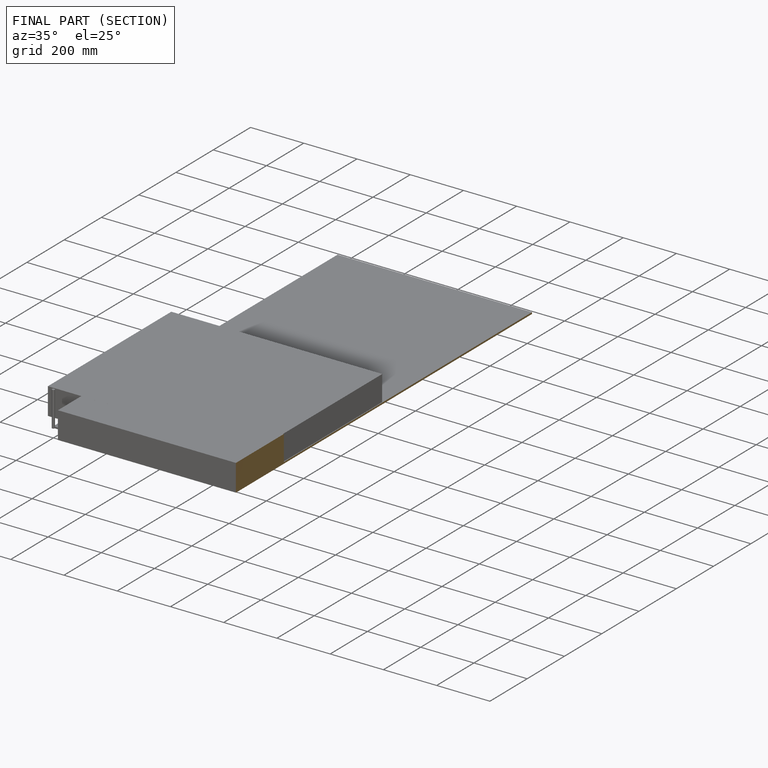
[diagram: finished part — half-section view (interior)]
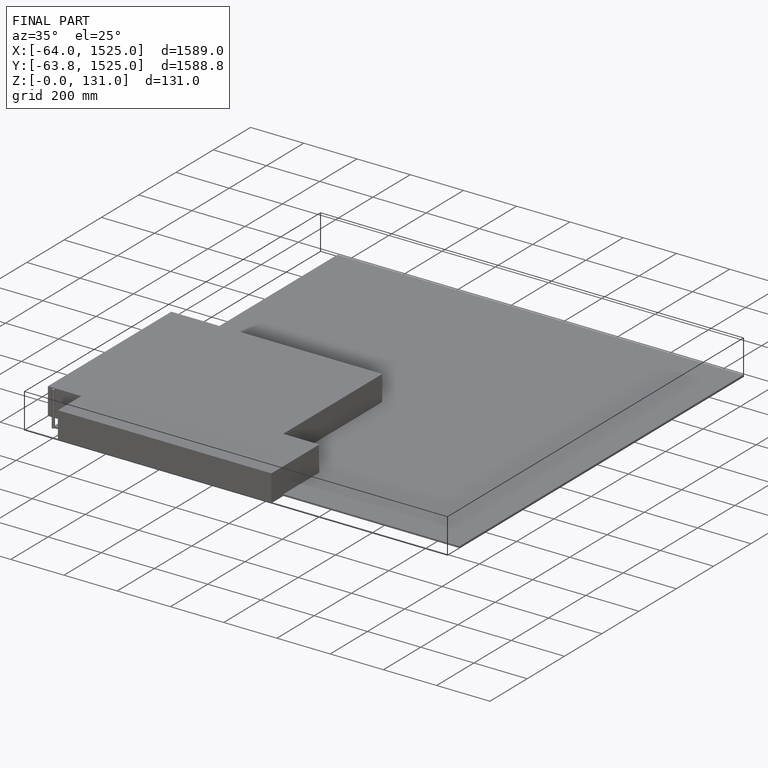
[diagram: finished part — iso view with bounding-box wireframe]
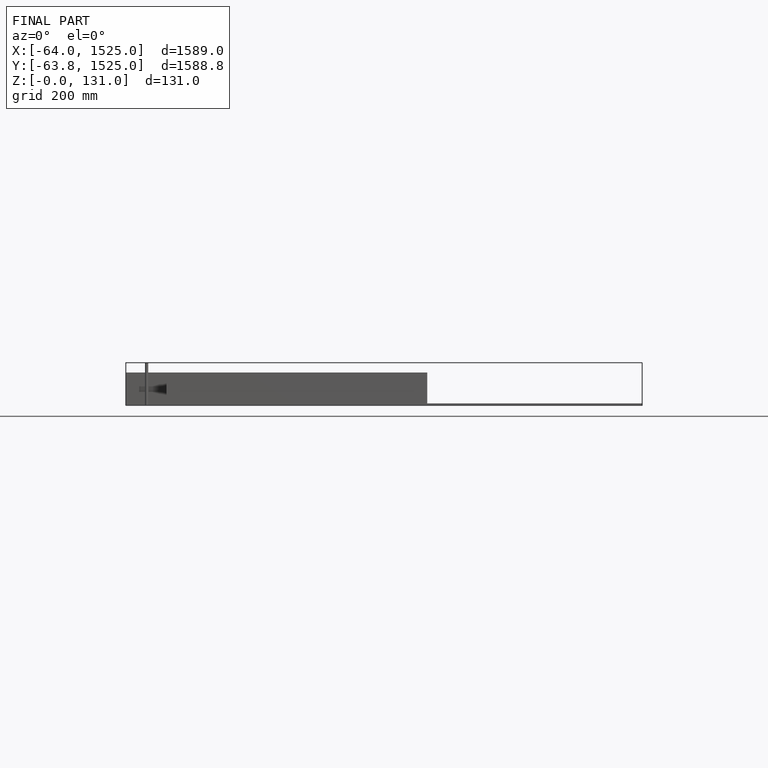
[diagram: finished part — front view with bounding-box wireframe]
